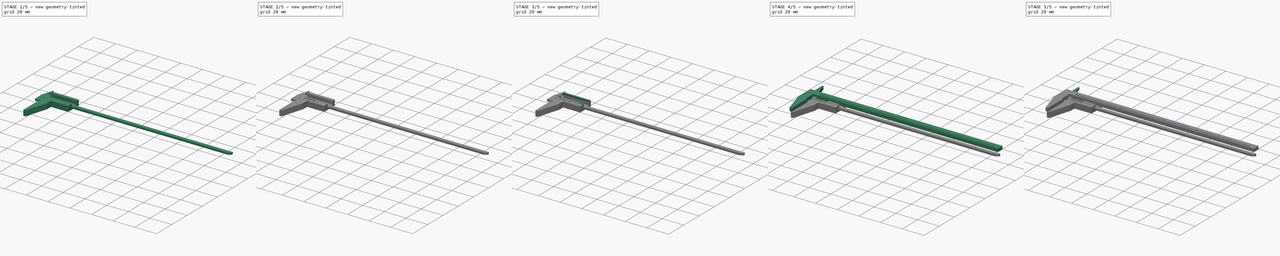
[diagram: build sequence overview — one tinted view per stage of 5, left to right]
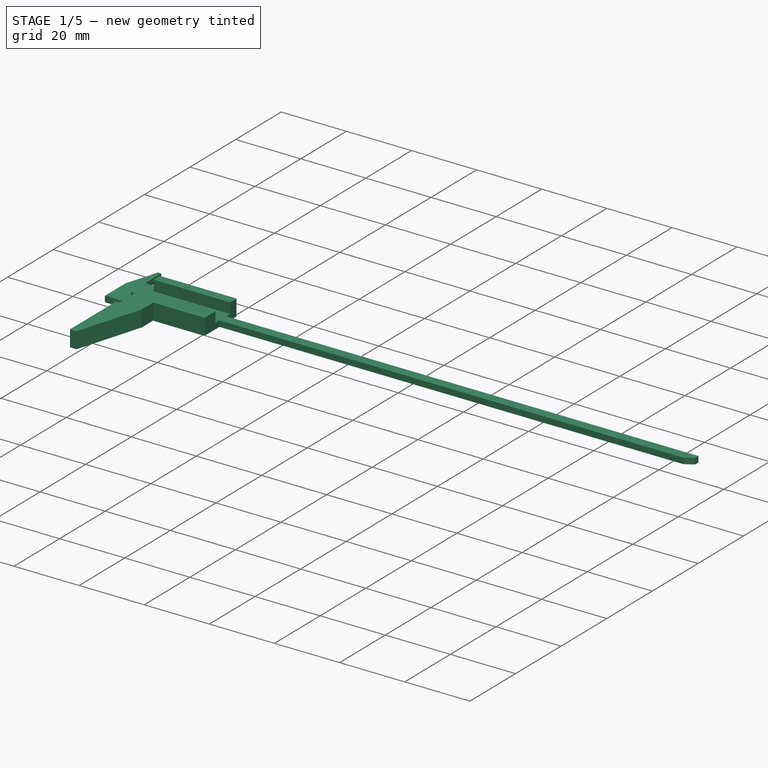
[diagram: stage 1 of 5 — iso view after this stage's code; geometry added in this stage tinted green]
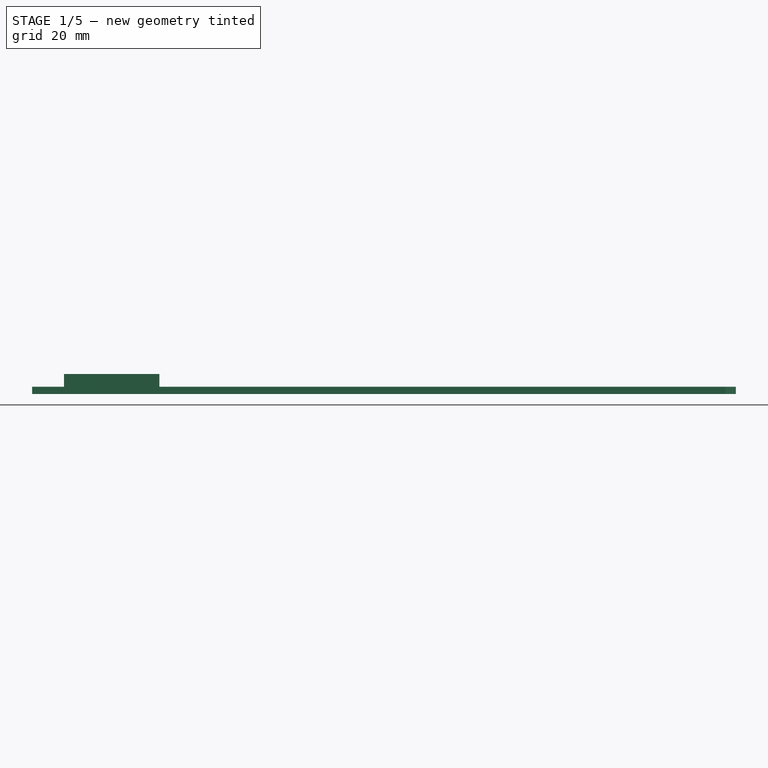
[diagram: stage 1 of 5 — front view after this stage's code; geometry added in this stage tinted green]
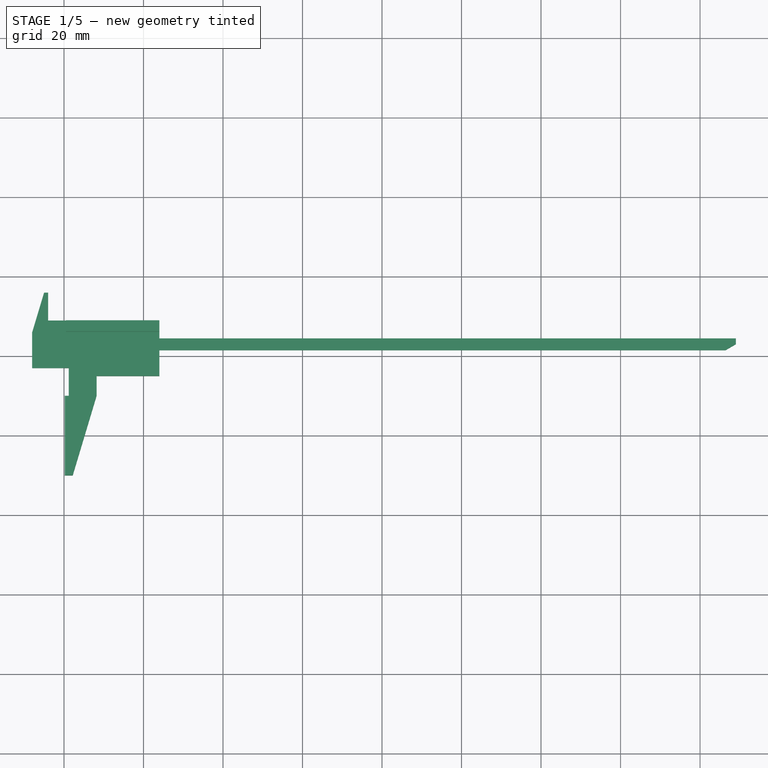
[diagram: stage 1 of 5 — top view after this stage's code; geometry added in this stage tinted green]
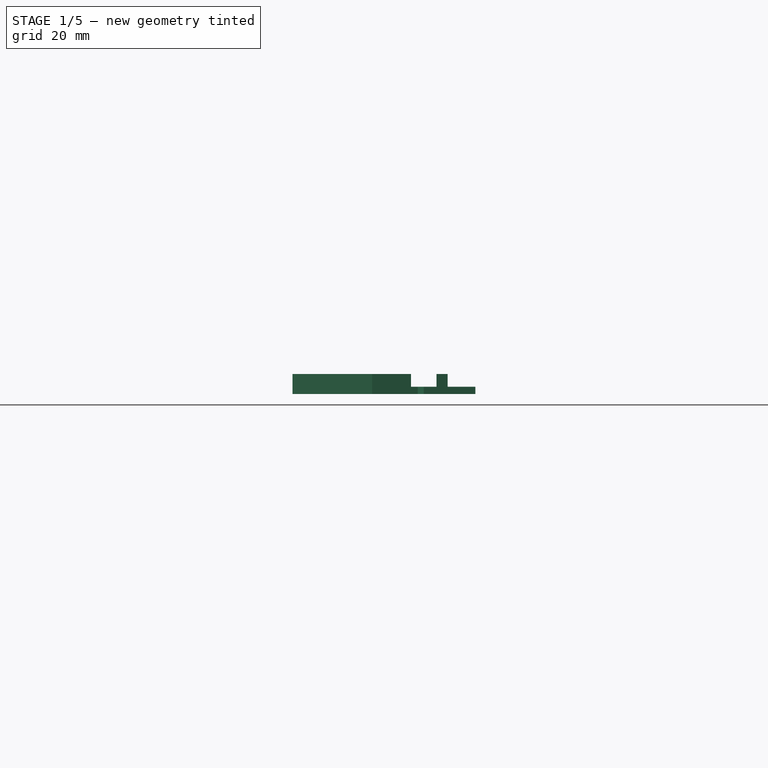
[diagram: stage 1 of 5 — right view after this stage's code; geometry added in this stage tinted green]
FCSTD DOCUMENT  (FreeCAD 0.18R16146 (Git))
Label: calipermakin-ext
License: All rights reserved
LicenseURL: http://en.wikipedia.org/wiki/All_rights_reserved
objects: Sketcher::SketchObject×13, PartDesign::Pocket×8, PartDesign::Pad×4, PartDesign::LinearPattern×3, PartDesign::Body×2, PartDesign::Mirrored×1
note: 43 computed .brp shape members not serialized (recipe doc carries the construction recipe); baked Part::Feature solids carry a one-line shape summary decoded from their .brp

FEATURE [PartDesign::Body] Body  label="main"
  Group = -> [Sketch,Sketch001,Pad,Sketch002,Pocket,Sketch003,LinearPattern,Pocket001,LinearPattern001,Sketch004,Pocket002]
  Origin = -> Origin
  Tip = -> Pocket002
FEATURE [Sketcher::SketchObject] Sketch005
  MapMode = 5
  Support = -> [XY_Plane001]
  sketch-geometry (15):
    g0: LineSegment StartX=0.2 StartY=-10 StartZ=0 EndX=0.2 EndY=-30 EndZ=0
    g1: LineSegment StartX=0.2 StartY=-30 StartZ=0 EndX=2.2 EndY=-30 EndZ=0
    g2: LineSegment StartX=2.2 StartY=-30 StartZ=0 EndX=8.2 EndY=-10 EndZ=0
    g3: LineSegment StartX=8.2 StartY=-10 StartZ=0 EndX=8.2 EndY=-5 EndZ=0
    g4: LineSegment StartX=8.2 StartY=-5 StartZ=0 EndX=24 EndY=-5 EndZ=0
    g5: LineSegment StartX=24 StartY=-5 StartZ=0 EndX=24 EndY=9 EndZ=0
    g6: LineSegment StartX=24 StartY=9 StartZ=0 EndX=-4 EndY=9 EndZ=0
    g7: LineSegment StartX=-4 StartY=9 StartZ=0 EndX=-4 EndY=16 EndZ=0
    g8: LineSegment StartX=-4 StartY=16 StartZ=0 EndX=-5 EndY=16 EndZ=0
    g9: LineSegment StartX=-5 StartY=16 StartZ=0 EndX=-8 EndY=6 EndZ=0
    g10: LineSegment StartX=-8 StartY=6 StartZ=0 EndX=-8 EndY=-3 EndZ=0
    g11: LineSegment StartX=-8 StartY=-3 StartZ=0 EndX=1.2 EndY=-3 EndZ=0
    g12: LineSegment StartX=1.2 StartY=-3 StartZ=0 EndX=1.2 EndY=-10 EndZ=0
    g13: LineSegment StartX=1.2 StartY=-10 StartZ=0 EndX=0.2 EndY=-10 EndZ=0
    g14: GeomPoint X=0 Y=-10 Z=0
  constraints (44):
    c: Vertical(g0)
    c: Coincident(g0,g1)
    c: Horizontal(g1)
    c: Coincident(g1,g2)
    c: Coincident(g2,g3)
    c: Vertical(g3)
    c: Coincident(g3,g4)
    c: Horizontal(g4)
    c: Coincident(g4,g5)
    c: Vertical(g5)
    c: Coincident(g5,g6)
    c: Horizontal(g6)
    c: Coincident(g6,g7)
    c: Vertical(g7)
    c: Coincident(g7,g8)
    c: Horizontal(g8)
    c: Coincident(g8,g9)
    c: Coincident(g9,g10)
    c: Vertical(g10)
    c: Coincident(g10,g11)
    c: Horizontal(g11)
    c: Coincident(g11,g12)
    c: Vertical(g12)
    c: Coincident(g12,g13)
    c: Horizontal(g13)
    c: DistanceX(g13,g13) = 1
    c: PointOnObject(g14,g-2)
    c: DistanceY(g14,g-1) = 10
    c: DistanceX(g14,g0) = 0.2
    c: Coincident(g13,g0)
    c: DistanceX(g1,g1) = 2
    c: DistanceX(g12,g2) = 7
    c: DistanceY(g11,g-1) = 3
    c: DistanceX(g-1,g4) = 24
    c: DistanceX(g6,g-1) = 4
    c: DistanceX(g8,g7) = 1
    c: DistanceX(g9,g7) = 4
    c: Horizontal(g2,g12)
    c: Horizontal(g0,g14)
    c: DistanceY(g0,g0) = 20
    c: DistanceY(g7,g7) = 7
    c: DistanceY(g-1,g9) = 6
    c: DistanceY(g-1,g5) = 9
    c: DistanceY(g5,g5) = 14
FEATURE [PartDesign::Pad] Pad001  label="main001"
  Length = 5
  Length2 = 2
  Profile = -> Sketch005
  Reversed = true
  Type = 0
FEATURE [Sketcher::SketchObject] Sketch006
  MapMode = 5
  Support = -> [XY_Plane001]
  sketch-geometry (9):
    g0: LineSegment StartX=-9 StartY=6.2 StartZ=0 EndX=-9 EndY=-3.8 EndZ=0
    g1: LineSegment StartX=-9 StartY=-3.8 StartZ=0 EndX=0 EndY=-3.8 EndZ=0
    g2: LineSegment StartX=0 StartY=-3.8 StartZ=0 EndX=0 EndY=-0.2 EndZ=0
    g3: LineSegment StartX=0 StartY=-0.2 StartZ=0 EndX=25 EndY=-0.2 EndZ=0
    g4: LineSegment StartX=25 StartY=-0.2 StartZ=0 EndX=25 EndY=6.2 EndZ=0
    g5: LineSegment StartX=-9 StartY=6.2 StartZ=0 EndX=-9 EndY=17 EndZ=0
    g6: LineSegment StartX=-9 StartY=17 StartZ=0 EndX=0.5 EndY=17 EndZ=0
    g7: LineSegment StartX=0.5 StartY=17 StartZ=0 EndX=0.5 EndY=6.2 EndZ=0
    g8: LineSegment StartX=0.5 StartY=6.2 StartZ=0 EndX=25 EndY=6.2 EndZ=0
  constraints (27):
    c: Vertical(g0)
    c: Coincident(g0,g1)
    c: PointOnObject(g1,g-2)
    c: Horizontal(g1)
    c: Coincident(g1,g2)
    c: PointOnObject(g2,g-2)
    c: Coincident(g2,g3)
    c: Horizontal(g3)
    c: Coincident(g3,g4)
    c: Vertical(g4)
    c: DistanceY(g4,g4) = 6.4
    c: DistanceY(g2,g-1) = 0.2
    c: DistanceX(g1,g1) = 9
    c: DistanceX(g0,g4) = 34
    c: DistanceY(g0,g0) = 10
    c: Horizontal(g0,g4)
    c: Coincident(g0,g5)
    c: Vertical(g5)
    c: Coincident(g5,g6)
    c: Horizontal(g6)
    c: Coincident(g6,g7)
    c: Vertical(g7)
    c: Coincident(g7,g8)
    c: Coincident(g8,g4)
    c: Horizontal(g8)
    c: DistanceY(g5,g5) = 10.8
    c: DistanceX(g6) = 0.5
FEATURE [PartDesign::Pocket] Pocket003  label="placeholder"
  BaseFeature = -> Pad001
  Length = 3.2
  Length2 = 100
  Profile = -> Sketch006
  Type = 0
FEATURE [Sketcher::SketchObject] Sketch007
  AttachmentOffset = pos=(0,0,-5) rot=(0,0,1;0rad)
  MapMode = 5
  Placement = pos=(0,0,-5) rot=(0,0,1;0rad)
  Support = -> [XY_Plane001]
  sketch-geometry (5):
    g0: LineSegment StartX=24 StartY=1.5 StartZ=0 EndX=166.402 EndY=1.5 EndZ=0
    g1: LineSegment StartX=169 StartY=4.5 StartZ=0 EndX=24 EndY=4.5 EndZ=0
    g2: LineSegment StartX=24 StartY=4.5 StartZ=0 EndX=24 EndY=1.5 EndZ=0
    g3: LineSegment StartX=169 StartY=4.5 StartZ=0 EndX=169 EndY=3 EndZ=0
    g4: LineSegment StartX=169 StartY=3 StartZ=0 EndX=166.402 EndY=1.5 EndZ=0
  constraints (15):
    c: Coincident(g1,g2)
    c: Coincident(g2,g0)
    c: Horizontal(g0)
    c: Horizontal(g1)
    c: Vertical(g2)
    c: DistanceY(g2,g2) = 3
    c: DistanceX(g0) = 24
    c: DistanceY(g0) = 1.5
    c: DistanceX(g1) = 169
    c: Vertical(g3)
    c: Coincident(g3,g4)
    c: Coincident(g4,g0)
    c: Angle(g3,g4) = 2.0944
    c: DistanceY(g3,g3) = 1.5
    c: Coincident(g1,g3)
FEATURE [PartDesign::Pad] Pad002
  BaseFeature = -> Pocket003
  Length = 1.8
  Length2 = 100
  Profile = -> Sketch007
  Type = 0
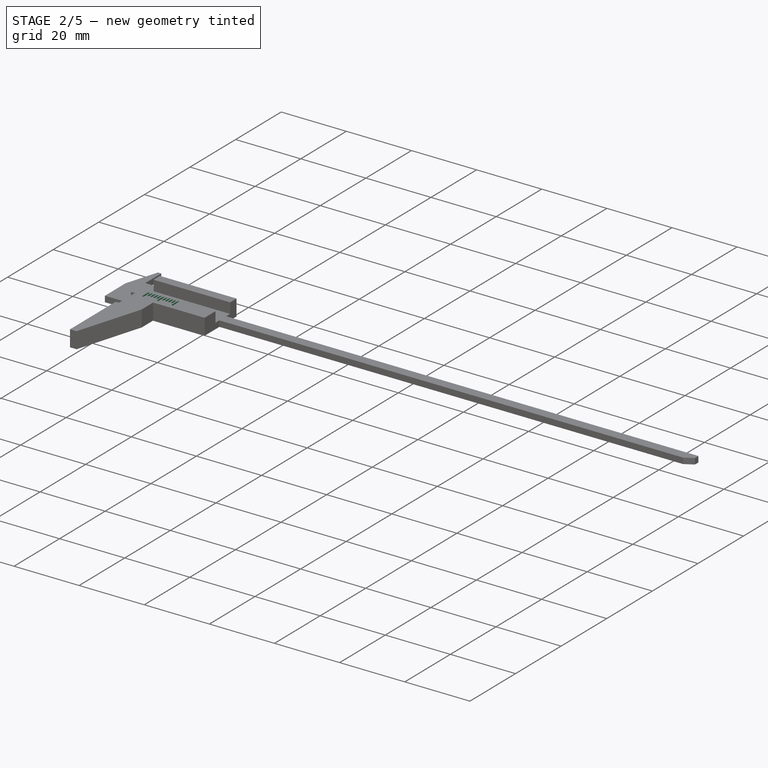
[diagram: stage 2 of 5 — iso view after this stage's code; geometry added in this stage tinted green]
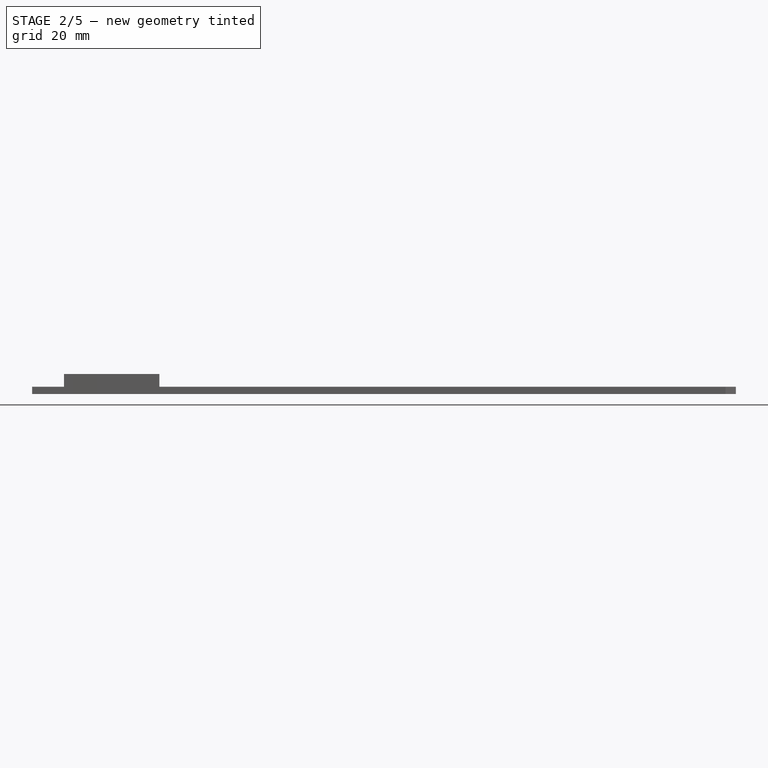
[diagram: stage 2 of 5 — front view after this stage's code; geometry added in this stage tinted green]
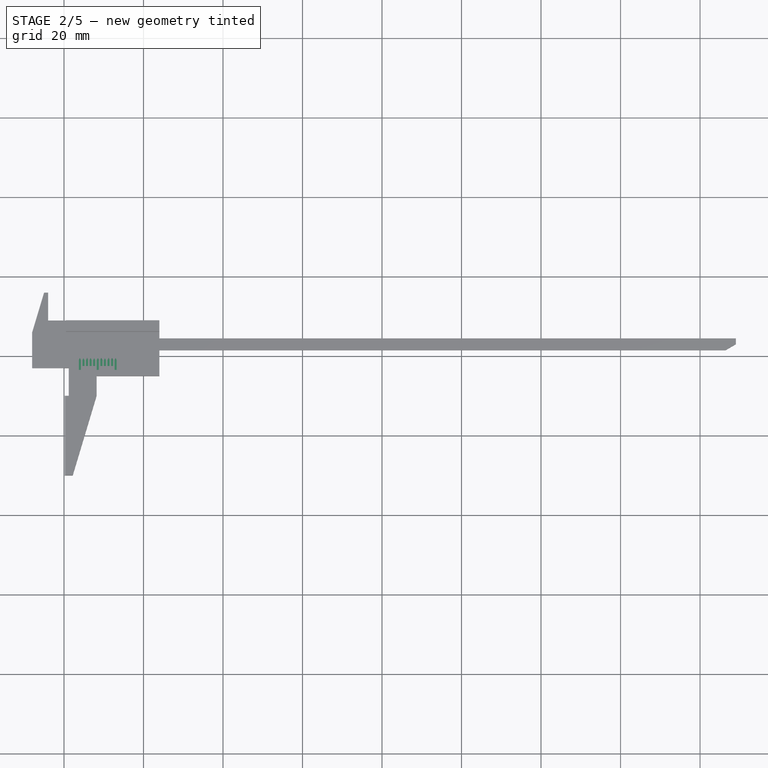
[diagram: stage 2 of 5 — top view after this stage's code; geometry added in this stage tinted green]
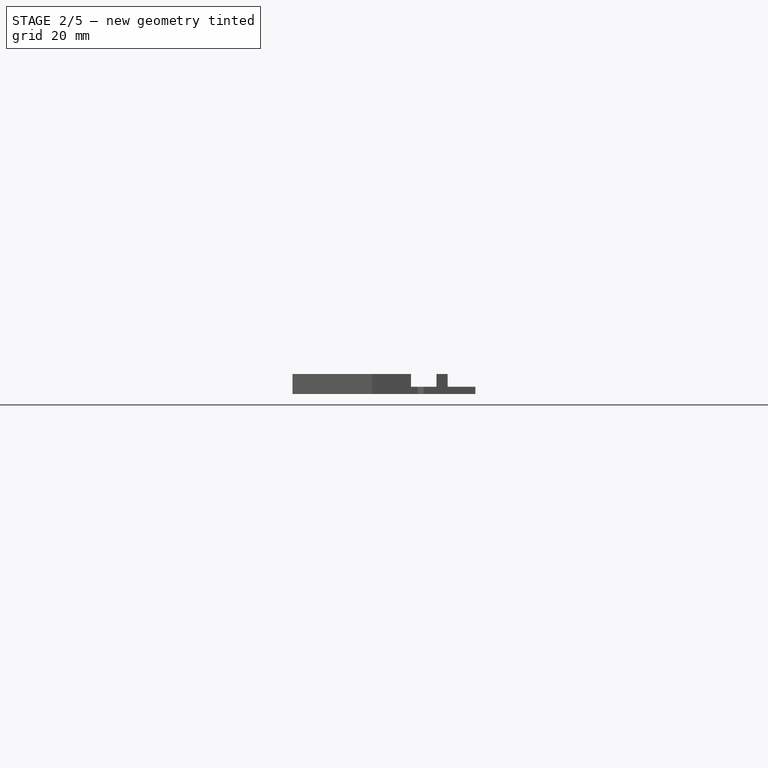
[diagram: stage 2 of 5 — right view after this stage's code; geometry added in this stage tinted green]
FEATURE [Sketcher::SketchObject] Sketch008
  MapMode = 5
  Support = -> [XY_Plane001]
  sketch-geometry (5):
    g0: LineSegment StartX=4 StartY=-0.5 StartZ=0 EndX=3.75 EndY=-1 EndZ=0
    g1: LineSegment StartX=3.75 StartY=-1 StartZ=0 EndX=3.75 EndY=-2.5 EndZ=0
    g2: LineSegment StartX=3.75 StartY=-2.5 StartZ=0 EndX=4.25 EndY=-2.5 EndZ=0
    g3: LineSegment StartX=4.25 StartY=-2.5 StartZ=0 EndX=4.25 EndY=-1 EndZ=0
    g4: LineSegment StartX=4.25 StartY=-1 StartZ=0 EndX=4 EndY=-0.5 EndZ=0
  constraints (15):
    c: Coincident(g0,g1)
    c: Vertical(g1)
    c: Coincident(g1,g2)
    c: Horizontal(g2)
    c: Coincident(g2,g3)
    c: Vertical(g3)
    c: Coincident(g3,g4)
    c: Coincident(g4,g0)
    c: Equal(g0,g4)
    c: DistanceY(g1,g1) = 1.5
    c: Horizontal(g0,g3)
    c: DistanceX(g2,g2) = 0.5
    c: DistanceX(g-1,g0) = 4
    c: DistanceY(g0,g-1) = 0.5
    c: DistanceY(g0,g0) = 0.5
FEATURE [PartDesign::Pocket] Pocket004  label="0.9mm"
  BaseFeature = -> Pad002
  Length = 2
  Length2 = 100
  Profile = -> Sketch008
  Type = 0
FEATURE [PartDesign::LinearPattern] LinearPattern002
  BaseFeature = -> Pocket004
  Direction = -> Sketch008 [H_Axis]
  Length = 9
  Occurrences = 11
  Originals = -> [Pocket004]
FEATURE [Sketcher::SketchObject] Sketch009
  MapMode = 5
  Support = -> [XY_Plane001]
  sketch-geometry (12):
    g0: LineSegment StartX=3.75 StartY=-2.5 StartZ=0 EndX=4.25 EndY=-2.5 EndZ=0
    g1: LineSegment StartX=4.25 StartY=-2.5 StartZ=0 EndX=4.25 EndY=-3.5 EndZ=0
    g2: LineSegment StartX=4.25 StartY=-3.5 StartZ=0 EndX=3.75 EndY=-3.5 EndZ=0
    g3: LineSegment StartX=3.75 StartY=-3.5 StartZ=0 EndX=3.75 EndY=-2.5 EndZ=0
    g4: LineSegment StartX=12.75 StartY=-2.5 StartZ=0 EndX=13.25 EndY=-2.5 EndZ=0
    g5: LineSegment StartX=13.25 StartY=-2.5 StartZ=0 EndX=13.25 EndY=-3.5 EndZ=0
    g6: LineSegment StartX=13.25 StartY=-3.5 StartZ=0 EndX=12.75 EndY=-3.5 EndZ=0
    g7: LineSegment StartX=12.75 StartY=-3.5 StartZ=0 EndX=12.75 EndY=-2.5 EndZ=0
    g8: LineSegment StartX=8.25 StartY=-2.5 StartZ=0 EndX=8.75 EndY=-2.5 EndZ=0
    g9: LineSegment StartX=8.75 StartY=-2.5 StartZ=0 EndX=8.75 EndY=-3.5 EndZ=0
    g10: LineSegment StartX=8.75 StartY=-3.5 StartZ=0 EndX=8.25 EndY=-3.5 EndZ=0
    g11: LineSegment StartX=8.25 StartY=-3.5 StartZ=0 EndX=8.25 EndY=-2.5 EndZ=0
  constraints (36):
    c: Coincident(g0,g1)
    c: Coincident(g1,g2)
    c: Coincident(g2,g3)
    c: Coincident(g3,g0)
    c: Horizontal(g0)
    c: Horizontal(g2)
    c: Vertical(g1)
    c: Vertical(g3)
    c: Coincident(g4,g5)
    c: Coincident(g5,g6)
    c: Coincident(g6,g7)
    c: Coincident(g7,g4)
    c: Horizontal(g4)
    c: Horizontal(g6)
    c: Vertical(g5)
    c: Vertical(g7)
    c: Equal(g7,g1)
    c: Equal(g6,g2)
    c: DistanceX(g0,g0) = 0.5
    c: DistanceY(g3,g3) = 1
    c: DistanceX(g0) = 3.75
    c: DistanceY(g0) = -2.5
    c: Horizontal(g4,g0)
    c: DistanceX(g0,g4) = 8.5
    c: Coincident(g8,g9)
    c: Coincident(g9,g10)
    c: Coincident(g10,g11)
    c: Coincident(g11,g8)
    c: Horizontal(g8)
    c: Horizontal(g10)
    c: Vertical(g9)
    c: Vertical(g11)
    c: Horizontal(g8,g0)
    c: Equal(g11,g1)
    c: Equal(g10,g6)
    c: DistanceX(g0,g8) = 4
FEATURE [PartDesign::Pocket] Pocket005
  BaseFeature = -> LinearPattern002
  Length = 2
  Length2 = 100
  Profile = -> Sketch009
  Type = 0
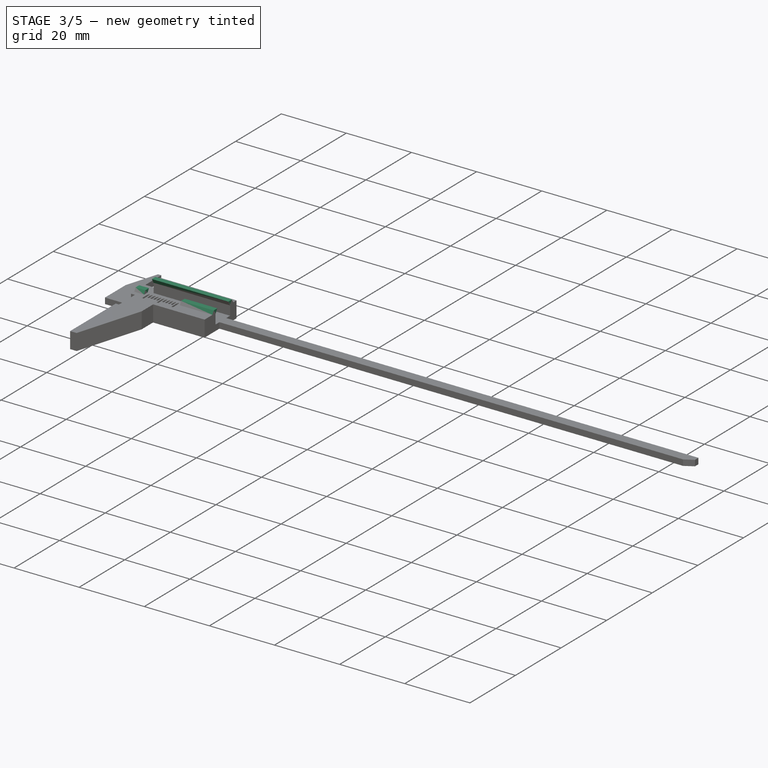
[diagram: stage 3 of 5 — iso view after this stage's code; geometry added in this stage tinted green]
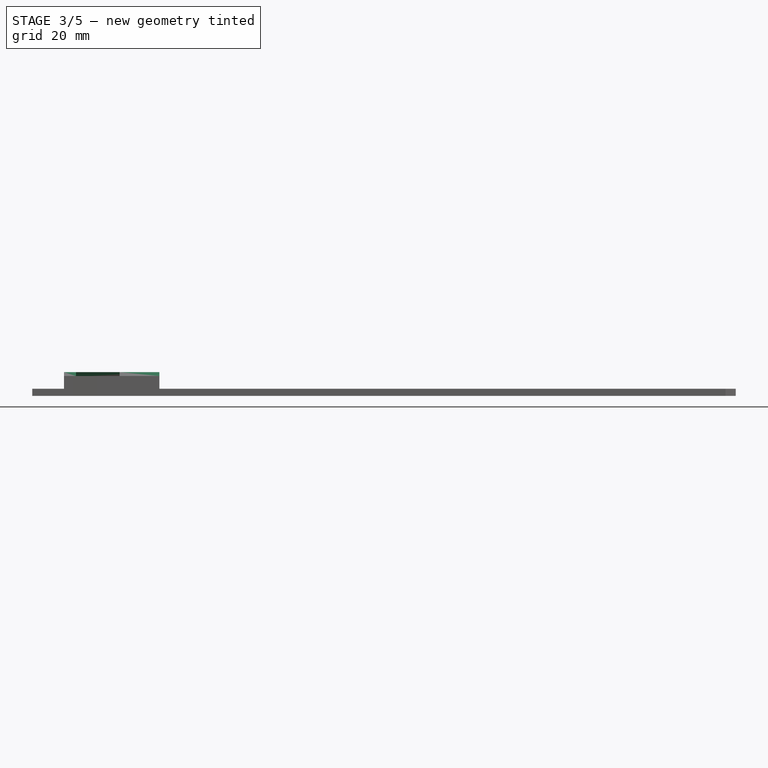
[diagram: stage 3 of 5 — front view after this stage's code; geometry added in this stage tinted green]
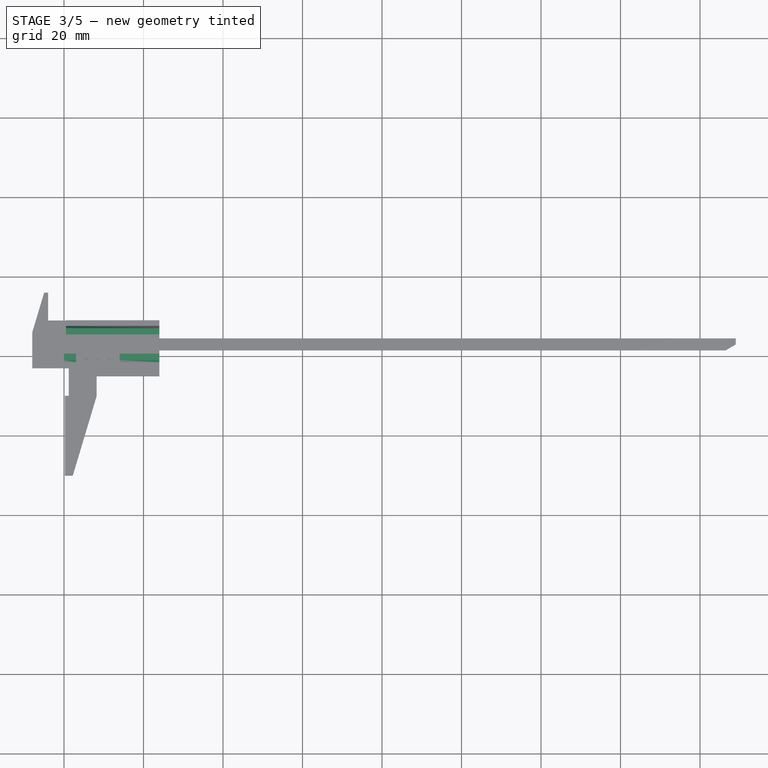
[diagram: stage 3 of 5 — top view after this stage's code; geometry added in this stage tinted green]
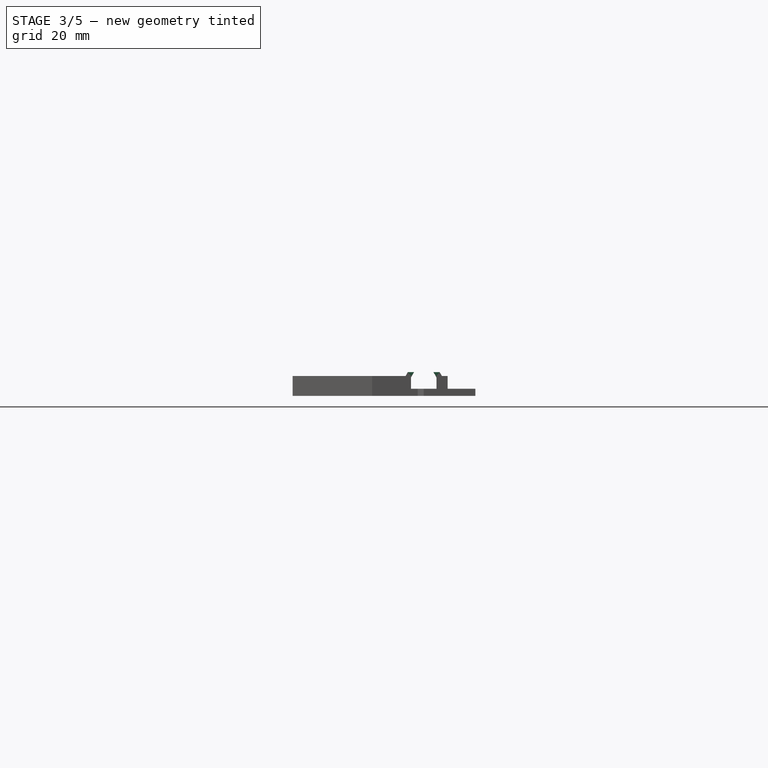
[diagram: stage 3 of 5 — right view after this stage's code; geometry added in this stage tinted green]
FEATURE [Sketcher::SketchObject] Sketch010
  AttachmentOffset = pos=(0,0,0) rot=(0,1,0;3.14159rad)
  MapMode = 5
  Placement = pos=(0,0,0) rot=(-0.57735,0.57735,0.57735;4.18879rad)
  Support = -> [YZ_Plane001]
  sketch-geometry (6):
    g0: LineSegment StartX=-0.57735 StartY=1 StartZ=0 EndX=0.2 EndY=-0.34641 EndZ=0
    g1: LineSegment StartX=1.57735 StartY=0 StartZ=0 EndX=1 EndY=1 EndZ=0
    g2: LineSegment StartX=1 StartY=1 StartZ=0 EndX=-0.57735 EndY=1 EndZ=0
    g3: LineSegment [constr] StartX=-3 StartY=0 StartZ=0 EndX=-3 EndY=6 EndZ=0
    g4: LineSegment StartX=1.57735 StartY=0 StartZ=0 EndX=0.2 EndY=0 EndZ=0
    g5: LineSegment StartX=0.2 StartY=0 StartZ=0 EndX=0.2 EndY=-0.34641 EndZ=0
  constraints (19):
    c: Coincident(g1,g2)
    c: Coincident(g2,g0)
    c: Horizontal(g2)
    c: Angle(g0,g2) = 1.0472
    c: PointOnObject(g-1,g0)
    c: DistanceX(g-1,g0) = 0.2
    c: DistanceY(g-1,g1) = 1
    c: DistanceX(g-1,g1) = 1
    c: Parallel(g1,g0)
    c: PointOnObject(g3,g-1)
    c: Vertical(g3)
    c: DistanceX(g3) = -3
    c: DistanceY(g3) = 6
    c: PointOnObject(g1,g-1)
    c: Coincident(g4,g1)
    c: PointOnObject(g4,g-1)
    c: Coincident(g5,g4)
    c: Coincident(g5,g0)
    c: Vertical(g5)
FEATURE [PartDesign::Pad] Pad003  label="holder"
  BaseFeature = -> Pocket005
  Length = 24
  Length2 = 100
  Profile = -> Sketch010
  Reversed = true
  Type = 0
FEATURE [PartDesign::Mirrored] Mirrored
  BaseFeature = -> Pad003
  MirrorPlane = -> Sketch010 [Axis0]
  Originals = -> [Pad003]
FEATURE [Sketcher::SketchObject] Sketch011
  MapMode = 5
  Support = -> [XY_Plane001]
  sketch-geometry (4):
    g0: LineSegment StartX=3 StartY=2 StartZ=0 EndX=14 EndY=2 EndZ=0
    g1: LineSegment StartX=14 StartY=2 StartZ=0 EndX=14 EndY=-5 EndZ=0
    g2: LineSegment StartX=14 StartY=-5 StartZ=0 EndX=3 EndY=-5 EndZ=0
    g3: LineSegment StartX=3 StartY=-5 StartZ=0 EndX=3 EndY=2 EndZ=0
  constraints (8):
    c: Coincident(g0,g1)
    c: Coincident(g1,g2)
    c: Coincident(g2,g3)
    c: Coincident(g3,g0)
    c: Horizontal(g0)
    c: Horizontal(g2)
    c: Vertical(g1)
    c: Vertical(g3)
FEATURE [PartDesign::Pocket] Pocket006  label="mm9pocket-of-holder"
  BaseFeature = -> Mirrored
  Length = 5
  Length2 = 100
  Profile = -> Sketch011
  Reversed = true
  Type = 0
FEATURE [Sketcher::SketchObject] Sketch012
  MapMode = 5
  Support = -> [XY_Plane001]
  sketch-geometry (4):
    g0: LineSegment StartX=0.492019 StartY=8 StartZ=0 EndX=-3 EndY=8 EndZ=0
    g1: LineSegment StartX=-3 StartY=8 StartZ=0 EndX=-3 EndY=4.37833 EndZ=0
    g2: LineSegment StartX=-3 StartY=4.37833 StartZ=0 EndX=0.492019 EndY=4.37833 EndZ=0
    g3: LineSegment StartX=0.492019 StartY=4.37833 StartZ=0 EndX=0.492019 EndY=8 EndZ=0
  constraints (8):
    c: Coincident(g0,g1)
    c: Coincident(g1,g2)
    c: Coincident(g2,g3)
    c: Coincident(g3,g0)
    c: Horizontal(g0)
    c: Horizontal(g2)
    c: Vertical(g1)
    c: Vertical(g3)
FEATURE [PartDesign::Pocket] Pocket007
  BaseFeature = -> Pocket006
  Length = 4
  Length2 = 100
  Midplane = true
  Profile = -> Sketch012
  Type = 0
FEATURE [PartDesign::Body] Body001  label="slider"
  Group = -> [Sketch005,Pad001,Sketch006,Pocket003,Sketch007,Pad002,Sketch008,Pocket004,LinearPattern002,Sketch009,Pocket005,Sketch010,Pad003,Mirrored,Sketch011,Pocket006,Sketch012,Pocket007]
  Origin = -> Origin001
  Placement = pos=(4,0,3) rot=(0,0,1;0rad)
  Tip = -> Pocket007
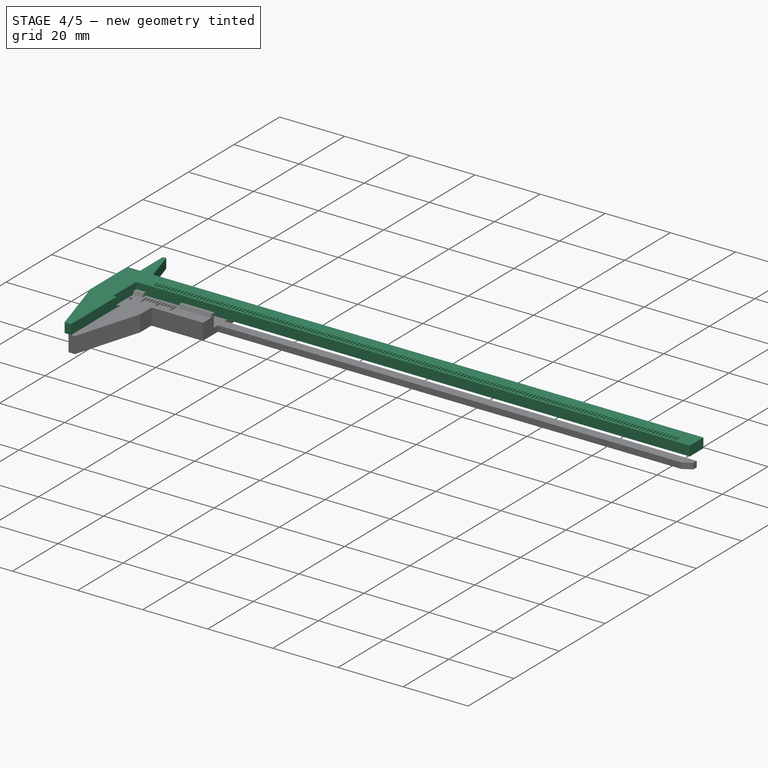
[diagram: stage 4 of 5 — iso view after this stage's code; geometry added in this stage tinted green]
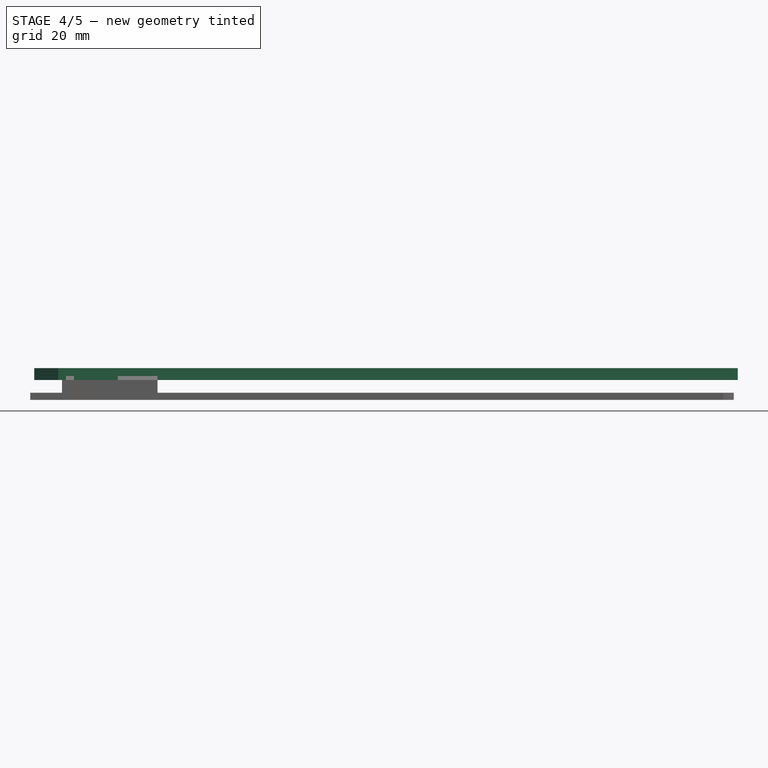
[diagram: stage 4 of 5 — front view after this stage's code; geometry added in this stage tinted green]
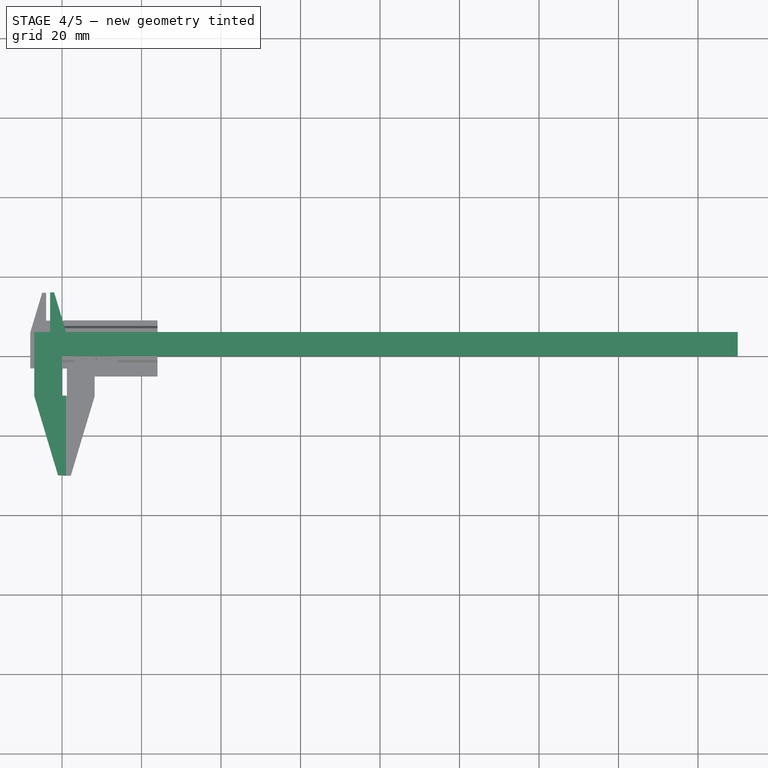
[diagram: stage 4 of 5 — top view after this stage's code; geometry added in this stage tinted green]
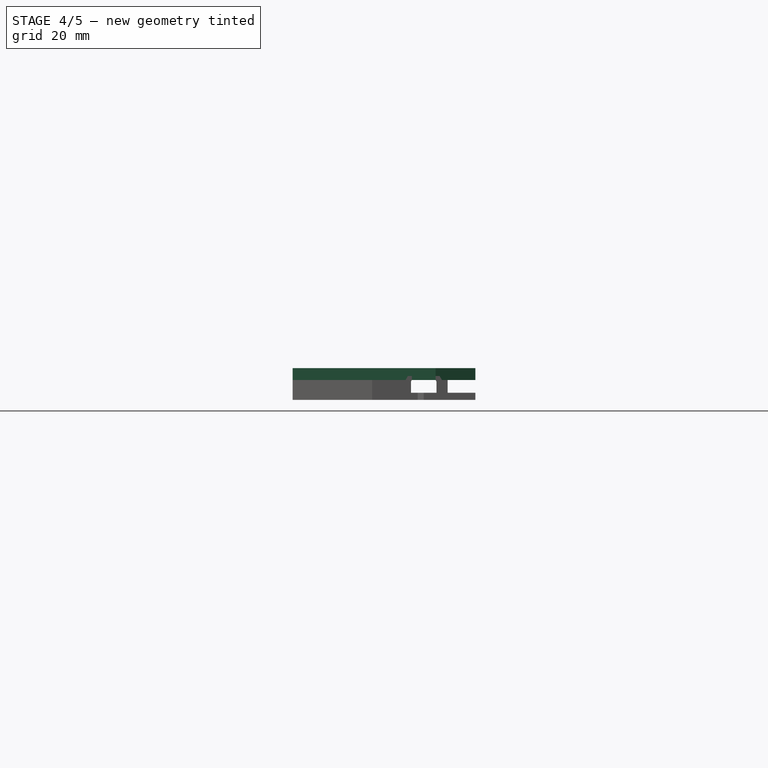
[diagram: stage 4 of 5 — right view after this stage's code; geometry added in this stage tinted green]
FEATURE [Sketcher::SketchObject] Sketch
  MapMode = 5
  Support = -> [XY_Plane]
  sketch-geometry (13):
    g0: LineSegment StartX=1 StartY=-30 StartZ=0 EndX=1 EndY=-10 EndZ=0
    g1: LineSegment StartX=1 StartY=-10 StartZ=0 EndX=2e-16 EndY=-10 EndZ=0
    g2: LineSegment StartX=1e-16 StartY=-10 StartZ=0 EndX=1e-16 EndY=0 EndZ=0
    g3: LineSegment StartX=1 StartY=-30 StartZ=0 EndX=-1 EndY=-30 EndZ=0
    g4: LineSegment StartX=-1 StartY=-30 StartZ=0 EndX=-7 EndY=-10 EndZ=0
    g5: LineSegment StartX=-7 StartY=-10 StartZ=0 EndX=-7 EndY=6 EndZ=0
    g6: LineSegment StartX=1e-16 StartY=0 StartZ=0 EndX=170 EndY=0 EndZ=0
    g7: LineSegment StartX=-7 StartY=6 StartZ=0 EndX=-3 EndY=6 EndZ=0
    g8: LineSegment StartX=-3 StartY=6 StartZ=0 EndX=-3 EndY=16 EndZ=0
    g9: LineSegment StartX=-3 StartY=16 StartZ=0 EndX=-2 EndY=16 EndZ=0
    g10: LineSegment StartX=-2 StartY=16 StartZ=0 EndX=1 EndY=6 EndZ=0
    g11: LineSegment StartX=1 StartY=6 StartZ=0 EndX=170 EndY=6 EndZ=0
    g12: LineSegment StartX=170 StartY=6 StartZ=0 EndX=170 EndY=0 EndZ=0
  constraints (38):
    c: Vertical(g0)
    c: Coincident(g0,g1)
    c: Horizontal(g1)
    c: Coincident(g1,g2)
    c: Vertical(g2)
    c: Coincident(g0,g3)
    c: Horizontal(g3)
    c: Coincident(g3,g4)
    c: Coincident(g4,g5)
    c: Vertical(g5)
    c: Coincident(g2,g6)
    c: PointOnObject(g6,g-1)
    c: Coincident(g5,g7)
    c: Horizontal(g7)
    c: Coincident(g7,g8)
    c: Vertical(g8)
    c: Coincident(g8,g9)
    c: Horizontal(g9)
    c: Coincident(g9,g10)
    c: Horizontal(g11)
    c: Coincident(g11,g12)
    c: Coincident(g12,g6)
    c: Vertical(g12)
    c: DistanceX(g6,g6) = 170
    c: DistanceX(g1,g1) = 1
    c: DistanceX(g3,g3) = 2
    c: DistanceY(g0,g0) = 20
    c: DistanceY(g2,g2) = 10
    c: DistanceX(g4,g0) = 8
    c: Horizontal(g4,g1)
    c: DistanceX(g7,g11) = 4
    c: DistanceX(g7,g7) = 4
    c: DistanceX(g9,g9) = 1
    c: DistanceY(g8,g8) = 10
    c: Horizontal(g7,g11)
    c: Coincident(g10,g11)
    c: DistanceY(g12,g12) = 6
    c: Coincident(g2,g-1)
FEATURE [Sketcher::SketchObject] Sketch001
  MapMode = 5
  sketch-geometry (17):
    g0: LineSegment StartX=0 StartY=0 StartZ=0 EndX=-1 EndY=0 EndZ=0
    g1: LineSegment StartX=-1 StartY=0 StartZ=0 EndX=-1 EndY=-12 EndZ=0
    g2: LineSegment StartX=-1 StartY=-12 StartZ=0 EndX=0 EndY=-12 EndZ=0
    g3: LineSegment StartX=0 StartY=-12 StartZ=0 EndX=0 EndY=-40 EndZ=0
    g4: LineSegment StartX=0 StartY=-40 StartZ=0 EndX=-3 EndY=-37 EndZ=0
    g5: LineSegment StartX=-3 StartY=-37 StartZ=0 EndX=-10 EndY=-8 EndZ=0
    g6: LineSegment StartX=-10 StartY=-8 StartZ=0 EndX=-10 EndY=20 EndZ=0
    g7: LineSegment StartX=-8.00002 StartY=37 StartZ=0 EndX=-5.93105 EndY=34.8276 EndZ=0
    g8: LineSegment StartX=-2 StartY=25 StartZ=0 EndX=-2 EndY=16 EndZ=0
    g9: LineSegment StartX=-2 StartY=16 StartZ=0 EndX=220 EndY=16 EndZ=0
    g10: LineSegment StartX=220 StartY=16 StartZ=0 EndX=220 EndY=0 EndZ=0
    g11: LineSegment StartX=220 StartY=0 StartZ=0 EndX=0 EndY=0 EndZ=0
    g12: ArcOfCircle CenterX=-16.25 CenterY=25 CenterZ=0 NormalX=0 NormalY=0 NormalZ=1 AngleXU=0 Radius=14.25 StartAngle=0 EndAngle=0.761015
    g13: LineSegment StartX=-8.00002 StartY=25 StartZ=0 EndX=-7.00002 EndY=25 EndZ=0
    g14: LineSegment StartX=-7.00002 StartY=25 StartZ=0 EndX=-7.00002 EndY=20 EndZ=0
    g15: LineSegment StartX=-8.00002 StartY=37 StartZ=0 EndX=-8.00002 EndY=25 EndZ=0
    g16: LineSegment StartX=-10 StartY=20 StartZ=0 EndX=-7.00002 EndY=20 EndZ=0
  constraints (49):
    c: Coincident(g-1,g0)
    c: PointOnObject(g0,g-1)
    c: Coincident(g0,g1)
    c: Vertical(g1)
    c: Coincident(g1,g2)
    c: Coincident(g2,g3)
    c: Vertical(g3)
    c: Coincident(g3,g4)
    c: Coincident(g4,g5)
    c: Coincident(g5,g6)
    c: Vertical(g6)
    c: Vertical(g8)
    c: Coincident(g8,g9)
    c: Horizontal(g9)
    c: Coincident(g9,g10)
    c: PointOnObject(g10,g-1)
    c: Vertical(g10)
    c: Coincident(g10,g11)
    c: Coincident(g11,g0)
    c: DistanceY(g10) = -16
    c: DistanceX(g5,g10) = 230
    c: DistanceX(g-1,g0) = -1
    c: DistanceX(g-1,g2) = 0
    c: DistanceY(g-1,g3) = -40
    c: DistanceX(g3,g4) = -3
    c: DistanceY(g3,g4) = 3
    c: DistanceX(g-1,g5) = -10
    c: DistanceY(g-1,g5) = -8
    c: DistanceY(g6,g5) = -28
    c: Tangent(g7,g12)
    c: Tangent(g8,g12)
    c: Horizontal(g2)
    c: DistanceY(g1,g0) = 12
    c: DistanceY(g8,g8) = -9
    c: Distance(g7,g7) = 3
    c: DistanceX(g-1,g8) = -2
    c: Horizontal(g13)
    c: Coincident(g13,g14)
    c: Vertical(g14)
    c: Coincident(g15,g7)
    c: Coincident(g15,g13)
    c: Vertical(g15)
    c: Coincident(g16,g6)
    c: Coincident(g16,g14)
    c: Horizontal(g16)
    c: DistanceY(g6,g7) = 17
    c: DistanceY(g14,g13) = 5
    c: DistanceX(g13,g13) = -1
    c: DistanceX(g7,g7) = 2.06897
FEATURE [PartDesign::Pad] Pad
  Length = 3
  Length2 = 100
  Profile = -> Sketch
  Type = 0
FEATURE [Sketcher::SketchObject] Sketch002
  AttachmentOffset = pos=(0,0,3) rot=(0,0,1;0rad)
  MapMode = 5
  Placement = pos=(0,0,3) rot=(0,0,1;0rad)
  Support = -> [XY_Plane]
  sketch-geometry (5):
    g0: LineSegment StartX=5.25 StartY=1 StartZ=0 EndX=5.25 EndY=2.5 EndZ=0
    g1: LineSegment StartX=5.25 StartY=2.5 StartZ=0 EndX=4.75 EndY=2.5 EndZ=0
    g2: LineSegment StartX=4.75 StartY=2.5 StartZ=0 EndX=4.75 EndY=1 EndZ=0
    g3: LineSegment StartX=4.75 StartY=1 StartZ=0 EndX=5 EndY=0.5 EndZ=0
    g4: LineSegment StartX=5 StartY=0.5 StartZ=0 EndX=5.25 EndY=1 EndZ=0
  constraints (15):
    c: Coincident(g0,g1)
    c: Coincident(g1,g2)
    c: Horizontal(g1)
    c: Vertical(g0)
    c: Vertical(g2)
    c: DistanceX(g1,g1) = 0.5
    c: Coincident(g2,g3)
    c: Coincident(g3,g4)
    c: Coincident(g4,g0)
    c: Horizontal(g0,g2)
    c: Equal(g4,g3)
    c: DistanceY(g2,g2) = 1.5
    c: DistanceX(g3) = 5
    c: DistanceY(g3,g2) = 0.5
    c: DistanceY(g3) = 0.5
FEATURE [PartDesign::Pocket] Pocket  label="mm"
  BaseFeature = -> Pad
  Length = 1
  Length2 = 100
  Profile = -> Sketch002
  Type = 0
FEATURE [Sketcher::SketchObject] Sketch003
  AttachmentOffset = pos=(0,0,3) rot=(0,0,1;0rad)
  MapMode = 5
  Placement = pos=(0,0,3) rot=(0,0,1;0rad)
  Support = -> [XY_Plane]
  sketch-geometry (4):
    g0: LineSegment StartX=4.75 StartY=2.5 StartZ=0 EndX=5.25 EndY=2.5 EndZ=0
    g1: LineSegment StartX=5.25 StartY=2.5 StartZ=0 EndX=5.25 EndY=3.5 EndZ=0
    g2: LineSegment StartX=5.25 StartY=3.5 StartZ=0 EndX=4.75 EndY=3.5 EndZ=0
    g3: LineSegment StartX=4.75 StartY=3.5 StartZ=0 EndX=4.75 EndY=2.5 EndZ=0
  constraints (12):
    c: Coincident(g0,g1)
    c: Coincident(g1,g2)
    c: Coincident(g2,g3)
    c: Coincident(g3,g0)
    c: Horizontal(g0)
    c: Horizontal(g2)
    c: Vertical(g1)
    c: Vertical(g3)
    c: DistanceX(g0) = 4.75
    c: DistanceX(g2,g2) = 0.5
    c: DistanceY(g1,g1) = 1
    c: DistanceY(g0) = 2.5
FEATURE [PartDesign::LinearPattern] LinearPattern
  BaseFeature = -> Pocket
  Direction = -> Sketch002 [H_Axis]
  Length = 160
  Occurrences = 161
  Originals = -> [Pocket]
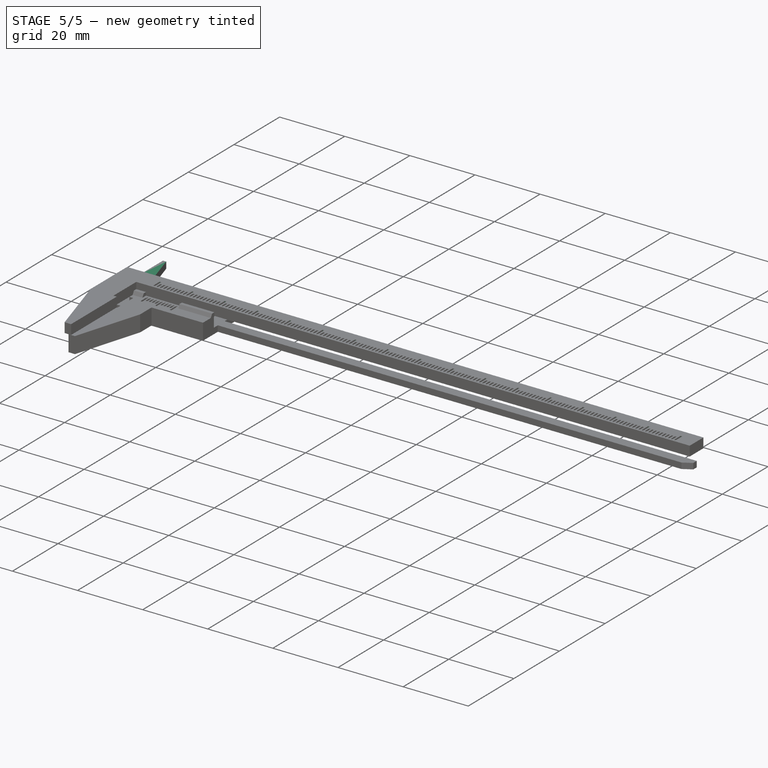
[diagram: stage 5 of 5 — iso view after this stage's code; geometry added in this stage tinted green]
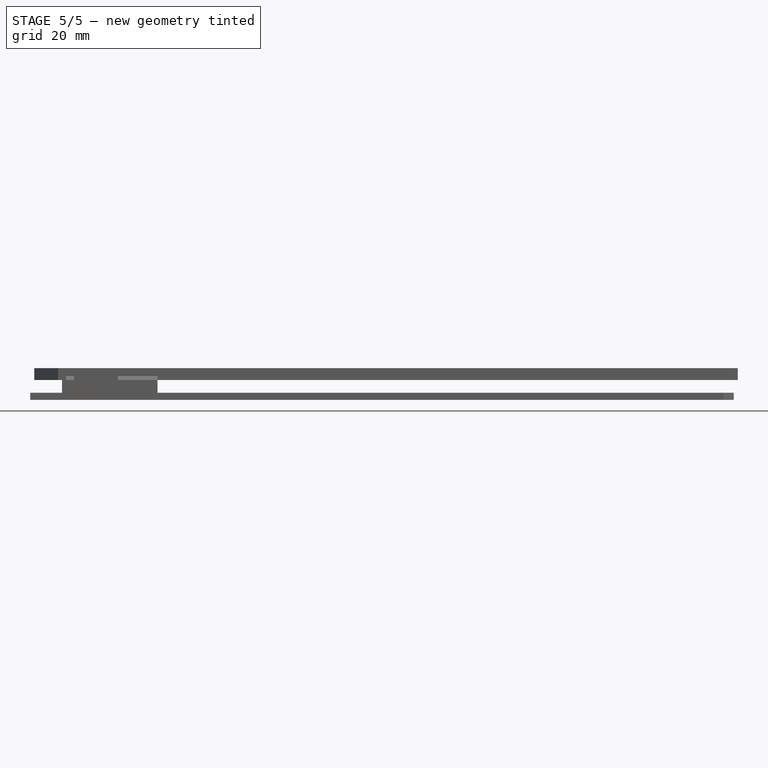
[diagram: stage 5 of 5 — front view after this stage's code; geometry added in this stage tinted green]
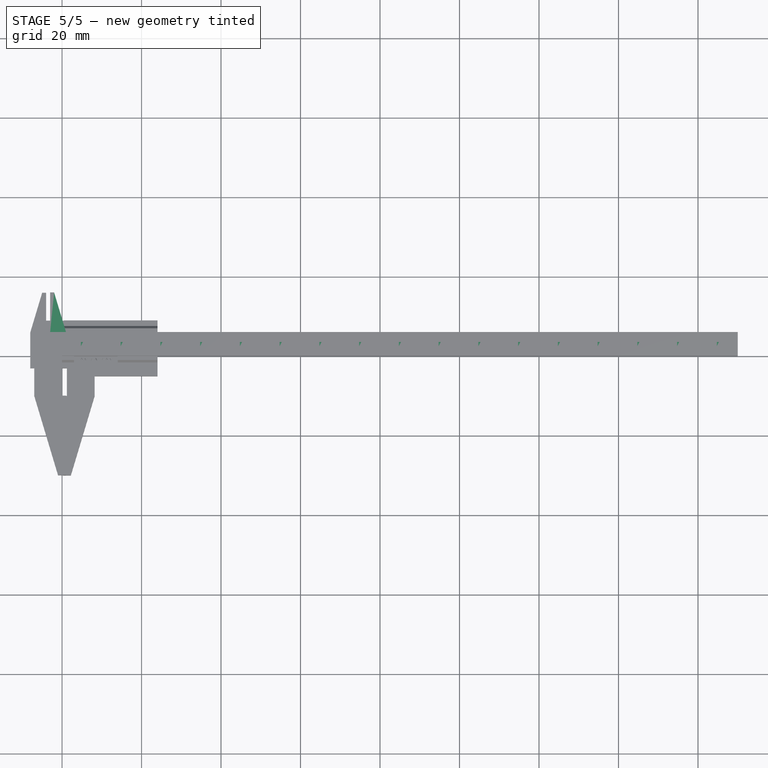
[diagram: stage 5 of 5 — top view after this stage's code; geometry added in this stage tinted green]
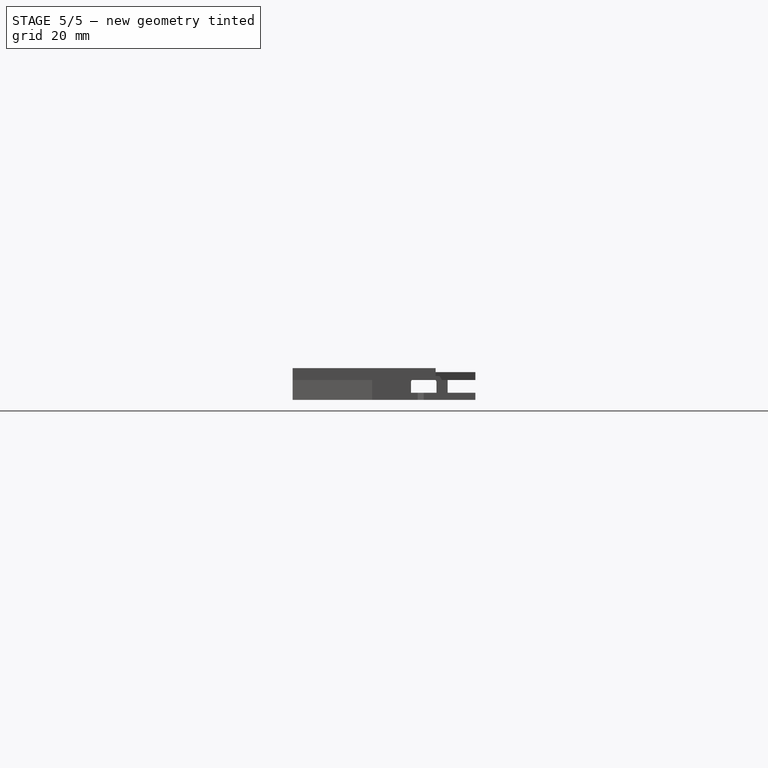
[diagram: stage 5 of 5 — right view after this stage's code; geometry added in this stage tinted green]
FEATURE [PartDesign::Pocket] Pocket001
  BaseFeature = -> LinearPattern
  Length = 1
  Length2 = 100
  Profile = -> Sketch003
  Type = 0
FEATURE [PartDesign::LinearPattern] LinearPattern001
  BaseFeature = -> Pocket001
  Direction = -> Sketch003 [H_Axis]
  Length = 160
  Occurrences = 17
  Originals = -> [Pocket001]
FEATURE [Sketcher::SketchObject] Sketch004
  AttachmentOffset = pos=(0,0,3) rot=(0,0,1;0rad)
  MapMode = 5
  Placement = pos=(0,0,3) rot=(0,0,1;0rad)
  Support = -> [XY_Plane]
  sketch-geometry (4):
    g0: LineSegment StartX=-4 StartY=6 StartZ=0 EndX=2 EndY=6 EndZ=0
    g1: LineSegment StartX=2 StartY=6 StartZ=0 EndX=2 EndY=17 EndZ=0
    g2: LineSegment StartX=2 StartY=17 StartZ=0 EndX=-4 EndY=17 EndZ=0
    g3: LineSegment StartX=-4 StartY=17 StartZ=0 EndX=-4 EndY=6 EndZ=0
  constraints (8):
    c: Coincident(g0,g1)
    c: Coincident(g1,g2)
    c: Coincident(g2,g3)
    c: Coincident(g3,g0)
    c: Horizontal(g0)
    c: Horizontal(g2)
    c: Vertical(g1)
    c: Vertical(g3)
FEATURE [PartDesign::Pocket] Pocket002
  BaseFeature = -> LinearPattern001
  Length = 1
  Length2 = 100
  Profile = -> Sketch004
  Type = 0
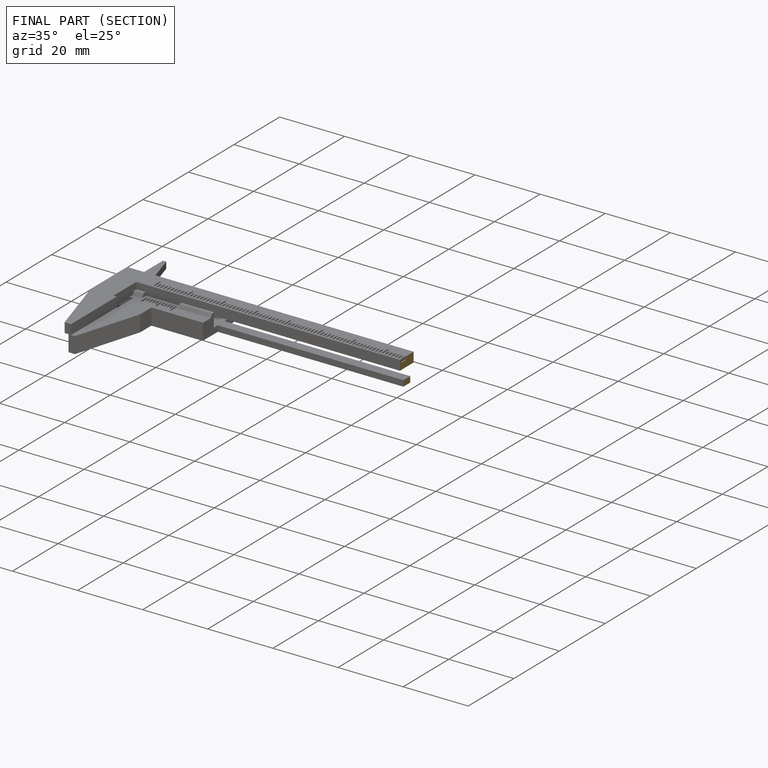
[diagram: finished part — half-section view (interior)]
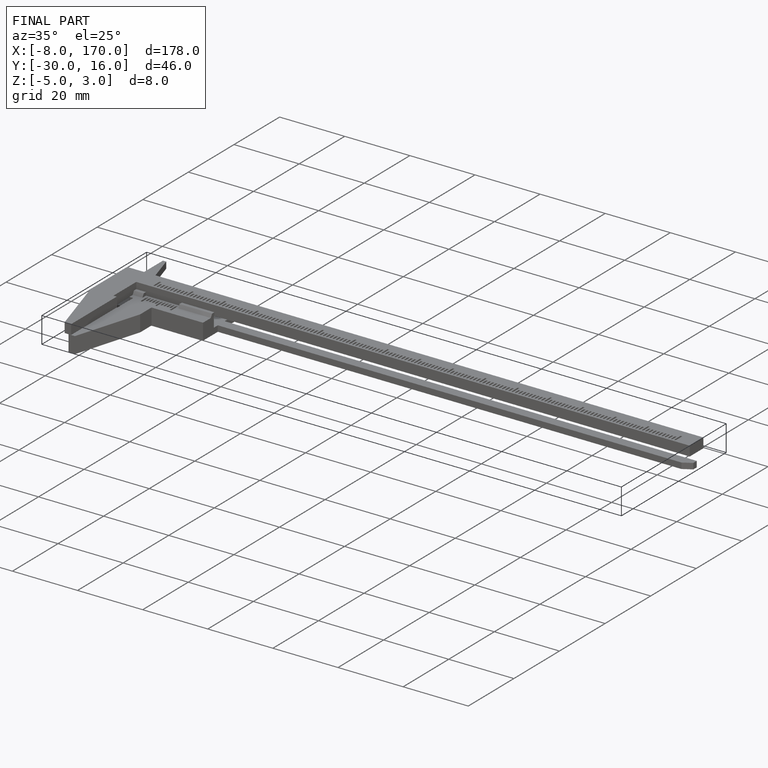
[diagram: finished part — iso view with bounding-box wireframe]
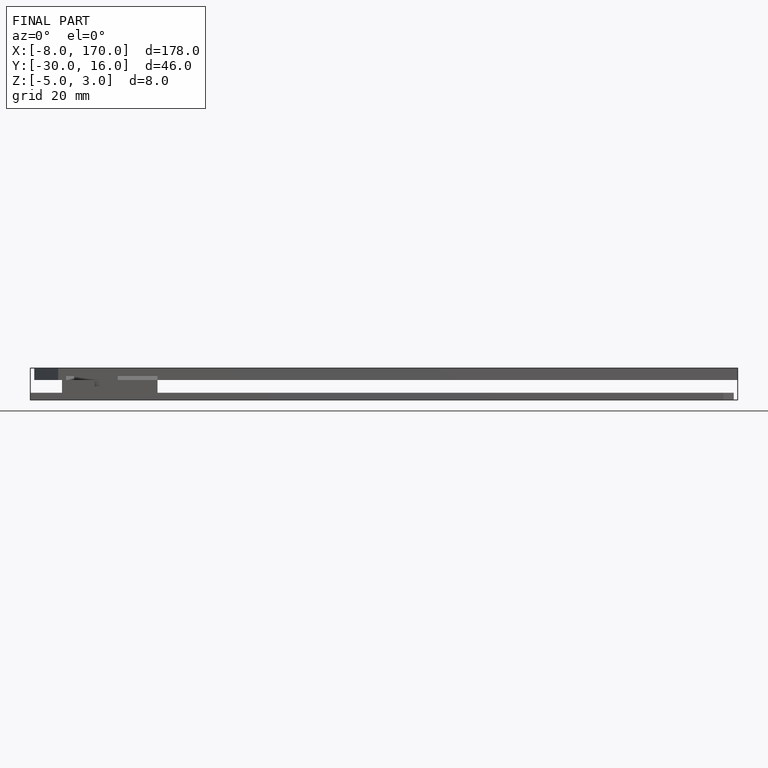
[diagram: finished part — front view with bounding-box wireframe]
